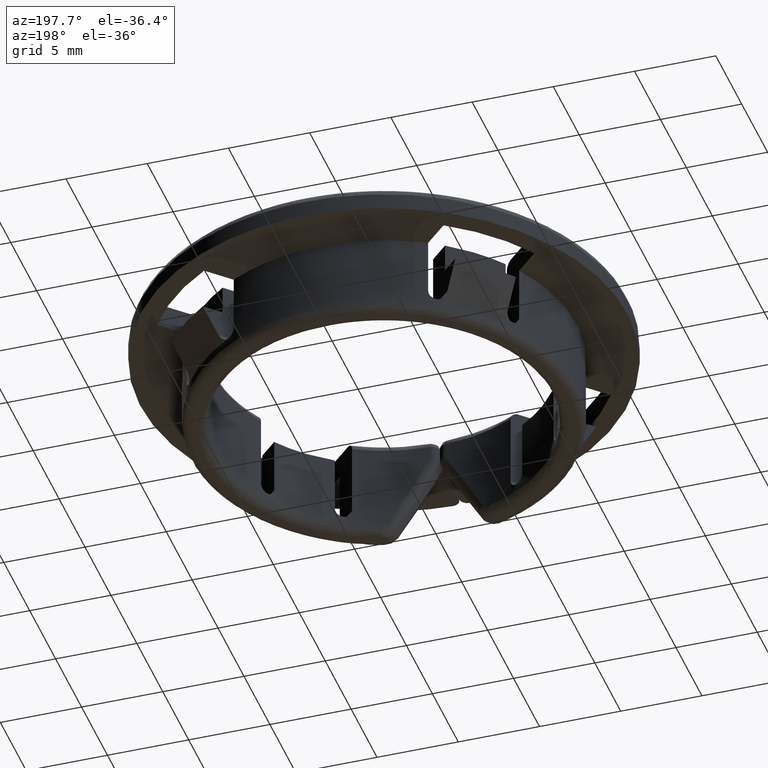
[diagram: clean part render]
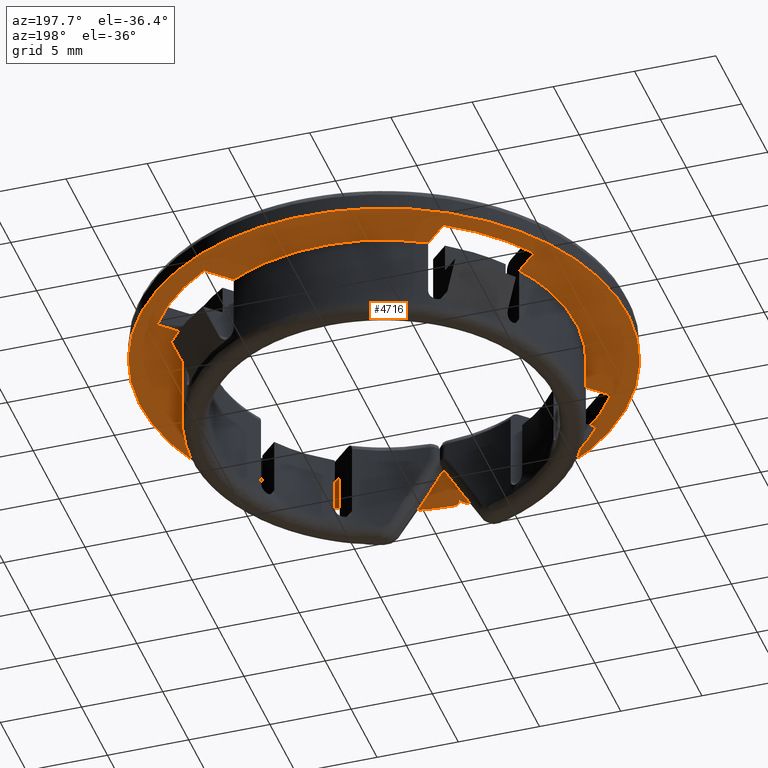
[diagram: same view with one face highlighted and labeled with its STEP entity id]
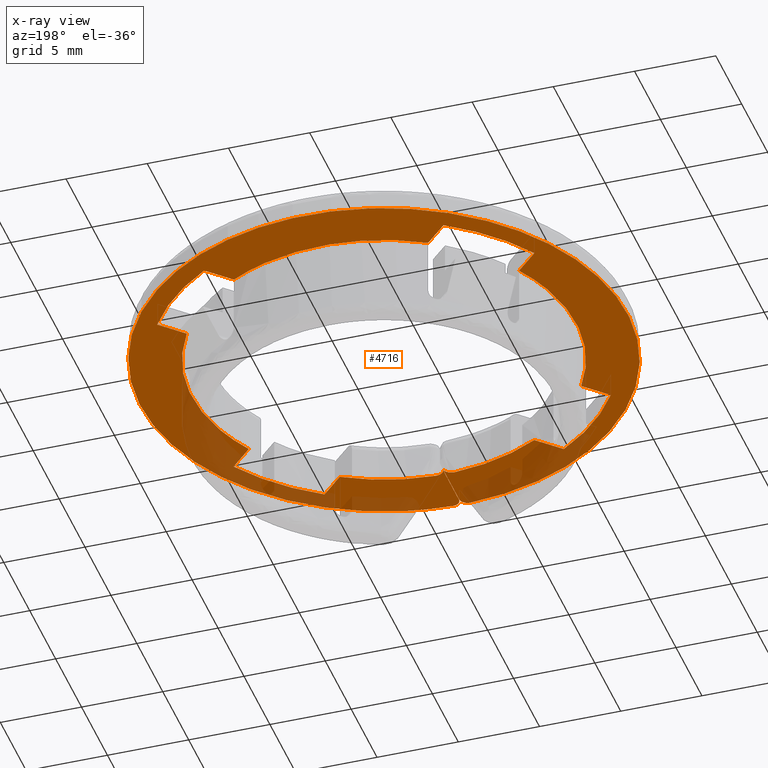
[diagram: x-ray of the same camera — body ghosted, the highlighted face saturated]
A machine part, auxiliary view. The second image highlights one B-rep face of the part: STEP entity #4716.
The next image is the same camera in x-ray: the body ghosted, the highlighted face saturated — about 21% of this face is hidden behind the body in this view.
In plain terms, the highlighted face is a freeform B-spline surface patch.
Its self-contained STEP definition (entity closure, byte-faithful):
#1049=CARTESIAN_POINT('',(-10.227567934152900,5.984927247033550,4.999999999999901));
#1050=VERTEX_POINT('',#1049);
#1056=CARTESIAN_POINT('',(-11.609800200734020,7.367159513614671,4.999999999999890));
#1057=VERTEX_POINT('',#1056);
#1058=CARTESIAN_POINT('',(-11.609800200734020,7.367159513614671,4.999999999999890));
#1059=CARTESIAN_POINT('',(-10.227567934152900,5.984927247033550,4.999999999999901));
#1060=QUASI_UNIFORM_CURVE('',1,(#1058,#1059),.UNSPECIFIED.,.F.,.U.);
#1061=EDGE_CURVE('',#1057,#1050,#1060,.T.);
#1117=CARTESIAN_POINT('',(-7.367159513614690,11.609800200733980,4.999999999999890));
#1118=VERTEX_POINT('',#1117);
#1119=CARTESIAN_POINT('',(-7.367159513614691,11.609800200733980,4.999999999999890));
#1120=CARTESIAN_POINT('',(-9.962739176658245,9.962739176658225,4.999999999999890));
#1121=CARTESIAN_POINT('',(-11.609800200734011,7.367159513614670,4.999999999999890));
#1129=(BOUNDED_CURVE()B_SPLINE_CURVE(2,(#1119,#1120,#1121),.UNSPECIFIED.,.F.,.U.)CURVE()GEOMETRIC_REPRESENTATION_ITEM()QUASI_UNIFORM_CURVE()RATIONAL_B_SPLINE_CURVE((1.0,0.975908138205065,1.0))REPRESENTATION_ITEM(''));
#1130=EDGE_CURVE('',#1118,#1057,#1129,.T.);
#1161=CARTESIAN_POINT('',(-5.984927247033720,10.227567934152800,4.999999999999901));
#1162=VERTEX_POINT('',#1161);
#1209=CARTESIAN_POINT('',(-5.984927247033720,10.227567934152800,4.999999999999901));
#1210=CARTESIAN_POINT('',(-7.367159513614690,11.609800200733980,4.999999999999890));
#1211=QUASI_UNIFORM_CURVE('',1,(#1209,#1210),.UNSPECIFIED.,.F.,.U.);
#1212=EDGE_CURVE('',#1162,#1118,#1211,.T.);
#1274=CARTESIAN_POINT('',(-10.227567934152720,-5.984927247033670,4.999999999999901));
#1275=VERTEX_POINT('',#1274);
#1321=CARTESIAN_POINT('',(-11.609800200734041,-7.367159513614340,4.999999999999890));
#1322=VERTEX_POINT('',#1321);
#1328=CARTESIAN_POINT('',(-11.609800200734041,-7.367159513614340,4.999999999999890));
#1329=CARTESIAN_POINT('',(-10.227567934152720,-5.984927247033670,4.999999999999901));
#1330=QUASI_UNIFORM_CURVE('',1,(#1328,#1329),.UNSPECIFIED.,.F.,.U.);
#1331=EDGE_CURVE('',#1322,#1275,#1330,.T.);
#1350=CARTESIAN_POINT('',(-7.367159513614740,-11.609800200733661,4.999999999999890));
#1351=VERTEX_POINT('',#1350);
#1352=CARTESIAN_POINT('',(-11.609800200734041,-7.367159513614341,4.999999999999890));
#1353=CARTESIAN_POINT('',(-9.962739176658289,-9.962739176657893,4.999999999999890));
#1354=CARTESIAN_POINT('',(-7.367159513614745,-11.609800200733661,4.999999999999890));
#1362=(BOUNDED_CURVE()B_SPLINE_CURVE(2,(#1352,#1353,#1354),.UNSPECIFIED.,.F.,.U.)CURVE()GEOMETRIC_REPRESENTATION_ITEM()QUASI_UNIFORM_CURVE()RATIONAL_B_SPLINE_CURVE((1.0,0.975908138205065,1.0))REPRESENTATION_ITEM(''));
#1363=EDGE_CURVE('',#1322,#1351,#1362,.T.);
#1402=CARTESIAN_POINT('',(-5.984927247033780,-10.227567934152759,4.999999999999901));
#1403=VERTEX_POINT('',#1402);
#1409=CARTESIAN_POINT('',(-5.984927247033780,-10.227567934152759,4.999999999999901));
#1410=CARTESIAN_POINT('',(-7.367159513614740,-11.609800200733661,4.999999999999890));
#1411=QUASI_UNIFORM_CURVE('',1,(#1409,#1410),.UNSPECIFIED.,.F.,.U.);
#1412=EDGE_CURVE('',#1403,#1351,#1411,.T.);
#1507=CARTESIAN_POINT('',(5.984927247033700,-10.227567934152740,4.999999999999901));
#1508=VERTEX_POINT('',#1507);
#1554=CARTESIAN_POINT('',(7.367159513614491,-11.609800200733700,4.999999999999890));
#1555=VERTEX_POINT('',#1554);
#1561=CARTESIAN_POINT('',(7.367159513614491,-11.609800200733700,4.999999999999890));
#1562=CARTESIAN_POINT('',(5.984927247033700,-10.227567934152740,4.999999999999901));
#1563=QUASI_UNIFORM_CURVE('',1,(#1561,#1562),.UNSPECIFIED.,.F.,.U.);
#1564=EDGE_CURVE('',#1555,#1508,#1563,.T.);
#1583=CARTESIAN_POINT('',(11.609800200733821,-7.367159513614380,4.999999999999890));
#1584=VERTEX_POINT('',#1583);
#1585=CARTESIAN_POINT('',(7.367159513614495,-11.609800200733689,4.999999999999890));
#1586=CARTESIAN_POINT('',(9.962739176658053,-9.962739176657935,4.999999999999890));
#1587=CARTESIAN_POINT('',(11.609800200733821,-7.367159513614380,4.999999999999890));
#1595=(BOUNDED_CURVE()B_SPLINE_CURVE(2,(#1585,#1586,#1587),.UNSPECIFIED.,.F.,.U.)CURVE()GEOMETRIC_REPRESENTATION_ITEM()QUASI_UNIFORM_CURVE()RATIONAL_B_SPLINE_CURVE((1.0,0.975908138205064,1.0))REPRESENTATION_ITEM(''));
#1596=EDGE_CURVE('',#1555,#1584,#1595,.T.);
#1635=CARTESIAN_POINT('',(10.227567934152800,-5.984927247033711,4.999999999999901));
#1636=VERTEX_POINT('',#1635);
#1642=CARTESIAN_POINT('',(10.227567934152800,-5.984927247033711,4.999999999999901));
#1643=CARTESIAN_POINT('',(11.609800200733821,-7.367159513614380,4.999999999999890));
#1644=QUASI_UNIFORM_CURVE('',1,(#1642,#1643),.UNSPECIFIED.,.F.,.U.);
#1645=EDGE_CURVE('',#1636,#1584,#1644,.T.);
#1740=CARTESIAN_POINT('',(10.227567934152800,5.984927247033730,4.999999999999901));
#1741=VERTEX_POINT('',#1740);
#1787=CARTESIAN_POINT('',(11.609800200733821,7.367159513614660,4.999999999999890));
#1788=VERTEX_POINT('',#1787);
#1794=CARTESIAN_POINT('',(11.609800200733821,7.367159513614660,4.999999999999890));
#1795=CARTESIAN_POINT('',(10.227567934152800,5.984927247033730,4.999999999999901));
#1796=QUASI_UNIFORM_CURVE('',1,(#1794,#1795),.UNSPECIFIED.,.F.,.U.);
#1797=EDGE_CURVE('',#1788,#1741,#1796,.T.);
#1816=CARTESIAN_POINT('',(7.367159513614531,11.609800200733959,4.999999999999890));
#1817=VERTEX_POINT('',#1816);
#1818=CARTESIAN_POINT('',(11.609800200733821,7.367159513614661,4.999999999999890));
#1819=CARTESIAN_POINT('',(9.962739176658070,9.962739176658193,4.999999999999890));
#1820=CARTESIAN_POINT('',(7.367159513614537,11.609800200733950,4.999999999999890));
#1828=(BOUNDED_CURVE()B_SPLINE_CURVE(2,(#1818,#1819,#1820),.UNSPECIFIED.,.F.,.U.)CURVE()GEOMETRIC_REPRESENTATION_ITEM()QUASI_UNIFORM_CURVE()RATIONAL_B_SPLINE_CURVE((1.0,0.975908138205065,1.0))REPRESENTATION_ITEM(''));
#1829=EDGE_CURVE('',#1788,#1817,#1828,.T.);
#1868=CARTESIAN_POINT('',(5.984927247033520,10.227567934152921,4.999999999999901));
#1869=VERTEX_POINT('',#1868);
#1875=CARTESIAN_POINT('',(5.984927247033520,10.227567934152921,4.999999999999901));
#1876=CARTESIAN_POINT('',(7.367159513614531,11.609800200733959,4.999999999999890));
#1877=QUASI_UNIFORM_CURVE('',1,(#1875,#1876),.UNSPECIFIED.,.F.,.U.);
#1878=EDGE_CURVE('',#1869,#1817,#1877,.T.);
#2374=CARTESIAN_POINT('',(-0.602784201753044,-11.834658896905900,4.999999999999901));
#2375=VERTEX_POINT('',#2374);
#2376=CARTESIAN_POINT('',(-0.009999999999965,-11.434315045192220,4.999999999999901));
#2377=VERTEX_POINT('',#2376);
#2378=CARTESIAN_POINT('',(-0.602784201753045,-11.834658896905900,4.999999999999901));
#2379=CARTESIAN_POINT('',(-0.537528504347005,-11.837982617835539,4.999999999999901));
#2380=CARTESIAN_POINT('',(-0.473646483541496,-11.831858085482970,4.999999999999901));
#2381=CARTESIAN_POINT('',(-0.379878634479197,-11.808535586128590,4.999999999999901));
#2382=CARTESIAN_POINT('',(-0.348662752824700,-11.798209608227539,4.999999999999900));
#2383=CARTESIAN_POINT('',(-0.288952402592100,-11.772973136458120,4.999999999999901));
#2384=CARTESIAN_POINT('',(-0.260408429777299,-11.758117748403571,4.999999999999901));
#2385=CARTESIAN_POINT('',(-0.206050364887644,-11.723749293907449,4.999999999999900));
#2386=CARTESIAN_POINT('',(-0.180107340031335,-11.704127429818280,4.999999999999901));
#2387=CARTESIAN_POINT('',(-0.131886447386762,-11.660036347171820,4.999999999999900));
#2388=CARTESIAN_POINT('',(-0.110200016597081,-11.636143672595299,4.999999999999901));
#2389=CARTESIAN_POINT('',(-0.071816353395464,-11.584556485497400,4.999999999999900));
#2390=CARTESIAN_POINT('',(-0.055058842199581,-11.556752607383100,4.999999999999901));
#2391=CARTESIAN_POINT('',(-0.027478235220911,-11.497275382633489,4.999999999999901));
#2392=CARTESIAN_POINT('',(-0.016998868610016,-11.466395219884260,4.999999999999900));
#2393=CARTESIAN_POINT('',(-0.009999999999964,-11.434315045192220,4.999999999999901));
#2394=B_SPLINE_CURVE_WITH_KNOTS('',3,(#2378,#2379,#2380,#2381,#2382,#2383,#2384,#2385,#2386,#2387,#2388,#2389,#2390,#2391,#2392,#2393),.UNSPECIFIED.,.F.,.U.,(4,2,2,2,2,2,2,4),(0.0,0.250000000000001,0.375000000000001,0.500000000000001,0.625000000000001,0.750000000000000,0.875000000000000,1.0),.UNSPECIFIED.);
#2395=EDGE_CURVE('',#2375,#2377,#2394,.T.);
#2922=CARTESIAN_POINT('',(0.602784201753103,-11.834658896905900,4.999999999999901));
#2923=VERTEX_POINT('',#2922);
#2937=CARTESIAN_POINT('',(0.010000000000035,-11.434315045192299,4.999999999999901));
#2938=VERTEX_POINT('',#2937);
#2939=CARTESIAN_POINT('',(0.010000000000035,-11.434315045192299,4.999999999999901));
#2940=CARTESIAN_POINT('',(0.016964401096619,-11.466237233798999,4.999999999999901));
#2941=CARTESIAN_POINT('',(0.027326174611873,-11.496755779118891,4.999999999999901));
#2942=CARTESIAN_POINT('',(0.054264691805432,-11.555225120312320,4.999999999999900));
#2943=CARTESIAN_POINT('',(0.071089014209200,-11.583452946940440,4.999999999999899));
#2944=CARTESIAN_POINT('',(0.109592525261091,-11.635448928072771,4.999999999999901));
#2945=CARTESIAN_POINT('',(0.131234791896740,-11.659338010578740,4.999999999999901));
#2946=CARTESIAN_POINT('',(0.178971985278784,-11.703188040407101,4.999999999999900));
#2947=CARTESIAN_POINT('',(0.204997418466239,-11.723001890728611,4.999999999999901));
#2948=CARTESIAN_POINT('',(0.286657059778269,-11.774872584440820,4.999999999999901));
#2949=CARTESIAN_POINT('',(0.347465425599067,-11.800343004750580,4.999999999999900));
#2950=CARTESIAN_POINT('',(0.472389712396065,-11.831673570111690,4.999999999999901));
#2951=CARTESIAN_POINT('',(0.537745233091566,-11.837971579016070,4.999999999999900));
#2952=CARTESIAN_POINT('',(0.602784201753102,-11.834658896905919,4.999999999999901));
#2953=B_SPLINE_CURVE_WITH_KNOTS('',3,(#2939,#2940,#2941,#2942,#2943,#2944,#2945,#2946,#2947,#2948,#2949,#2950,#2951,#2952),.UNSPECIFIED.,.F.,.U.,(4,2,2,2,2,2,4),(0.0,0.124999999999999,0.249999999999998,0.374999999999997,0.499999999999996,0.749999999999998,1.0),.UNSPECIFIED.);
#2954=EDGE_CURVE('',#2938,#2923,#2953,.T.);
#3406=CARTESIAN_POINT('',(0.010000000000041,-14.491028258891861,4.999999999999901));
#3407=VERTEX_POINT('',#3406);
#3413=CARTESIAN_POINT('',(0.527586206896595,-14.990718888508820,4.999999999999901));
#3414=VERTEX_POINT('',#3413);
#3415=CARTESIAN_POINT('',(0.527586206896595,-14.990718888508820,4.999999999999901));
#3416=CARTESIAN_POINT('',(0.315439856381473,-14.998185207449731,4.999999999999901));
#3417=CARTESIAN_POINT('',(0.162719928190758,-14.850745580860290,4.999999999999901));
#3418=CARTESIAN_POINT('',(0.010000000000042,-14.703305954270846,4.999999999999901));
#3419=CARTESIAN_POINT('',(0.010000000000042,-14.491028258891861,4.999999999999901));
#3427=(BOUNDED_CURVE()B_SPLINE_CURVE(2,(#3415,#3416,#3417,#3418,#3419),.UNSPECIFIED.,.F.,.U.)B_SPLINE_CURVE_WITH_KNOTS((3,2,3),(0.0,0.500000000000000,1.0),.UNSPECIFIED.)CURVE()GEOMETRIC_REPRESENTATION_ITEM()RATIONAL_B_SPLINE_CURVE((1.0,0.920478175628996,1.0,0.920478175628996,1.0))REPRESENTATION_ITEM(''));
#3428=EDGE_CURVE('',#3414,#3407,#3427,.T.);
#3653=CARTESIAN_POINT('',(-0.527586206896508,-14.990718888508820,4.999999999999901));
#3654=VERTEX_POINT('',#3653);
#3660=CARTESIAN_POINT('',(-0.009999999999958,-14.491028258891861,4.999999999999901));
#3661=VERTEX_POINT('',#3660);
#3662=CARTESIAN_POINT('',(-0.009999999999958,-14.491028258891861,4.999999999999901));
#3663=CARTESIAN_POINT('',(-0.009999999999958,-14.703305954270835,4.999999999999901));
#3664=CARTESIAN_POINT('',(-0.162719928190672,-14.850745580860290,4.999999999999901));
#3665=CARTESIAN_POINT('',(-0.315439856381387,-14.998185207449731,4.999999999999901));
#3666=CARTESIAN_POINT('',(-0.527586206896508,-14.990718888508820,4.999999999999901));
#3674=(BOUNDED_CURVE()B_SPLINE_CURVE(2,(#3662,#3663,#3664,#3665,#3666),.UNSPECIFIED.,.F.,.U.)B_SPLINE_CURVE_WITH_KNOTS((3,2,3),(0.0,0.500000000000000,1.0),.UNSPECIFIED.)CURVE()GEOMETRIC_REPRESENTATION_ITEM()RATIONAL_B_SPLINE_CURVE((1.0,0.920478175628996,1.0,0.920478175628996,1.0))REPRESENTATION_ITEM(''));
#3675=EDGE_CURVE('',#3661,#3654,#3674,.T.);
#3780=CARTESIAN_POINT('',(-0.009999999999965,-11.434315045192220,4.999999999999901));
#3781=CARTESIAN_POINT('',(-0.009999999999958,-14.491028258891861,4.999999999999901));
#3782=QUASI_UNIFORM_CURVE('',1,(#3780,#3781),.UNSPECIFIED.,.F.,.U.);
#3783=EDGE_CURVE('',#2377,#3661,#3782,.T.);
#3804=CARTESIAN_POINT('',(0.010000000000041,-14.491028258891861,4.999999999999901));
#3805=CARTESIAN_POINT('',(0.010000000000035,-11.434315045192299,4.999999999999901));
#3806=QUASI_UNIFORM_CURVE('',1,(#3804,#3805),.UNSPECIFIED.,.F.,.U.);
#3807=EDGE_CURVE('',#3407,#2938,#3806,.T.);
#4068=CARTESIAN_POINT('',(10.227567934152789,5.984927247033727,4.999999999999901));
#4069=CARTESIAN_POINT('',(13.729803693709620,1.040834E-014,4.999999999999901));
#4070=CARTESIAN_POINT('',(10.227567934152800,-5.984927247033712,4.999999999999901));
#4078=(BOUNDED_CURVE()B_SPLINE_CURVE(2,(#4068,#4069,#4070),.UNSPECIFIED.,.F.,.U.)CURVE()GEOMETRIC_REPRESENTATION_ITEM()QUASI_UNIFORM_CURVE()RATIONAL_B_SPLINE_CURVE((1.0,0.863085901616279,1.0))REPRESENTATION_ITEM(''));
#4079=EDGE_CURVE('',#1741,#1636,#4078,.T.);
#4098=CARTESIAN_POINT('',(5.984927247033700,-10.227567934152740,4.999999999999901));
#4099=CARTESIAN_POINT('',(3.489882932221285,-11.687607974797562,4.999999999999901));
#4100=CARTESIAN_POINT('',(0.602784201753103,-11.834658896905900,4.999999999999901));
#4108=(BOUNDED_CURVE()B_SPLINE_CURVE(2,(#4098,#4099,#4100),.UNSPECIFIED.,.F.,.U.)CURVE()GEOMETRIC_REPRESENTATION_ITEM()QUASI_UNIFORM_CURVE()RATIONAL_B_SPLINE_CURVE((1.0,0.971509064007901,1.0))REPRESENTATION_ITEM(''));
#4109=EDGE_CURVE('',#1508,#2923,#4108,.T.);
#4116=CARTESIAN_POINT('',(-0.602784201753036,-11.834658896905911,4.999999999999901));
#4117=CARTESIAN_POINT('',(-3.489882932221285,-11.687607974797579,4.999999999999901));
#4118=CARTESIAN_POINT('',(-5.984927247033783,-10.227567934152759,4.999999999999901));
#4126=(BOUNDED_CURVE()B_SPLINE_CURVE(2,(#4116,#4117,#4118),.UNSPECIFIED.,.F.,.U.)CURVE()GEOMETRIC_REPRESENTATION_ITEM()QUASI_UNIFORM_CURVE()RATIONAL_B_SPLINE_CURVE((1.0,0.971509064007900,1.0))REPRESENTATION_ITEM(''));
#4127=EDGE_CURVE('',#2375,#1403,#4126,.T.);
#4146=CARTESIAN_POINT('',(-10.227567934152720,-5.984927247033670,4.999999999999901));
#4147=CARTESIAN_POINT('',(-13.729803693709551,-1.127570E-013,4.999999999999901));
#4148=CARTESIAN_POINT('',(-10.227567934152900,5.984927247033546,4.999999999999901));
#4156=(BOUNDED_CURVE()B_SPLINE_CURVE(2,(#4146,#4147,#4148),.UNSPECIFIED.,.F.,.U.)CURVE()GEOMETRIC_REPRESENTATION_ITEM()QUASI_UNIFORM_CURVE()RATIONAL_B_SPLINE_CURVE((1.0,0.863085901616283,1.0))REPRESENTATION_ITEM(''));
#4157=EDGE_CURVE('',#1275,#1050,#4156,.T.);
#4176=CARTESIAN_POINT('',(-5.984927247033719,10.227567934152800,4.999999999999901));
#4177=CARTESIAN_POINT('',(-1.353084E-013,13.729803693709540,4.999999999999901));
#4178=CARTESIAN_POINT('',(5.984927247033516,10.227567934152921,4.999999999999901));
#4186=(BOUNDED_CURVE()B_SPLINE_CURVE(2,(#4176,#4177,#4178),.UNSPECIFIED.,.F.,.U.)CURVE()GEOMETRIC_REPRESENTATION_ITEM()QUASI_UNIFORM_CURVE()RATIONAL_B_SPLINE_CURVE((1.0,0.863085901616284,1.0))REPRESENTATION_ITEM(''));
#4187=EDGE_CURVE('',#1162,#1869,#4186,.T.);
#4224=CARTESIAN_POINT('',(-0.527586206896508,-14.990718888508820,4.999999999999901));
#4225=CARTESIAN_POINT('',(-15.256913007382764,-14.472332164389423,4.999999999999900));
#4226=CARTESIAN_POINT('',(-14.997679542643111,0.263833917805264,4.999999999999901));
#4227=CARTESIAN_POINT('',(-14.738446077903452,14.999999999999998,4.999999999999900));
#4228=CARTESIAN_POINT('',(0.0,15.0,4.999999999999901));
#4229=CARTESIAN_POINT('',(14.738446077903340,14.999999999999998,4.999999999999900));
#4230=CARTESIAN_POINT('',(14.997679542643100,0.263833917805367,4.999999999999901));
#4231=CARTESIAN_POINT('',(15.256913007382861,-14.472332164389323,4.999999999999900));
#4232=CARTESIAN_POINT('',(0.527586206896595,-14.990718888508820,4.999999999999901));
#4240=(BOUNDED_CURVE()B_SPLINE_CURVE(2,(#4224,#4225,#4226,#4227,#4228,#4229,#4230,#4231,#4232),.UNSPECIFIED.,.F.,.U.)B_SPLINE_CURVE_WITH_KNOTS((3,2,2,2,3),(0.0,0.250000000000000,0.500000000000000,0.750000000000000,1.0),.UNSPECIFIED.)CURVE()GEOMETRIC_REPRESENTATION_ITEM()RATIONAL_B_SPLINE_CURVE((1.0,0.713298299399938,1.0,0.713298299399938,1.0,0.713298299399938,1.0,0.713298299399938,1.0))REPRESENTATION_ITEM(''));
#4241=EDGE_CURVE('',#3654,#3414,#4240,.T.);
#4685=CARTESIAN_POINT('',(-16.498483183921870,-16.489061545037259,4.999999999999901));
#4686=CARTESIAN_POINT('',(16.498482915742461,-16.489061545037259,4.999999999999901));
#4687=CARTESIAN_POINT('',(-16.498483183921870,16.498051726883190,4.999999999999901));
#4688=CARTESIAN_POINT('',(16.498482915742461,16.498051726883190,4.999999999999901));
#4689=B_SPLINE_SURFACE_WITH_KNOTS('',1,1,((#4685,#4687),(#4686,#4688)),.UNSPECIFIED.,.F.,.F.,.U.,(2,2),(2,2),(0.0,32.996966099664327),(0.0,32.987113271920457),.UNSPECIFIED.);
#4690=ORIENTED_EDGE('',*,*,#1212,.T.);
#4691=ORIENTED_EDGE('',*,*,#1130,.T.);
#4692=ORIENTED_EDGE('',*,*,#1061,.T.);
#4693=ORIENTED_EDGE('',*,*,#4157,.F.);
#4694=ORIENTED_EDGE('',*,*,#1331,.F.);
#4695=ORIENTED_EDGE('',*,*,#1363,.T.);
#4696=ORIENTED_EDGE('',*,*,#1412,.F.);
#4697=ORIENTED_EDGE('',*,*,#4127,.F.);
#4698=ORIENTED_EDGE('',*,*,#2395,.T.);
#4699=ORIENTED_EDGE('',*,*,#3783,.T.);
#4700=ORIENTED_EDGE('',*,*,#3675,.T.);
#4701=ORIENTED_EDGE('',*,*,#4241,.T.);
#4702=ORIENTED_EDGE('',*,*,#3428,.T.);
#4703=ORIENTED_EDGE('',*,*,#3807,.T.);
#4704=ORIENTED_EDGE('',*,*,#2954,.T.);
#4705=ORIENTED_EDGE('',*,*,#4109,.F.);
#4706=ORIENTED_EDGE('',*,*,#1564,.F.);
#4707=ORIENTED_EDGE('',*,*,#1596,.T.);
#4708=ORIENTED_EDGE('',*,*,#1645,.F.);
#4709=ORIENTED_EDGE('',*,*,#4079,.F.);
#4710=ORIENTED_EDGE('',*,*,#1797,.F.);
#4711=ORIENTED_EDGE('',*,*,#1829,.T.);
#4712=ORIENTED_EDGE('',*,*,#1878,.F.);
#4713=ORIENTED_EDGE('',*,*,#4187,.F.);
#4714=EDGE_LOOP('',(#4690,#4691,#4692,#4693,#4694,#4695,#4696,#4697,#4698,#4699,#4700,#4701,#4702,#4703,#4704,#4705,#4706,#4707,#4708,#4709,#4710,#4711,#4712,#4713));
#4715=FACE_OUTER_BOUND('',#4714,.T.);
#4716=ADVANCED_FACE('',(#4715),#4689,.F.);